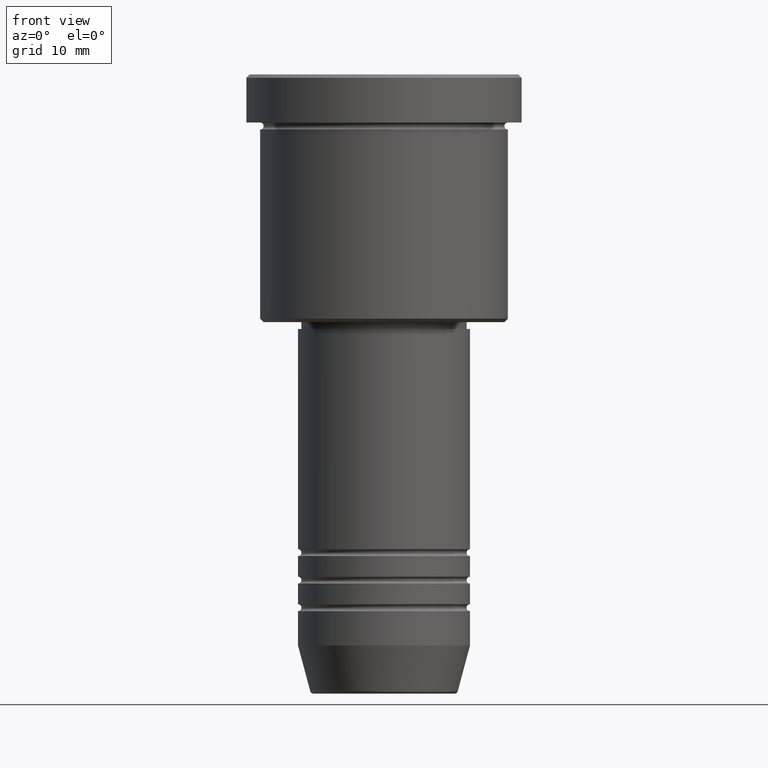
[diagram: clean part render]
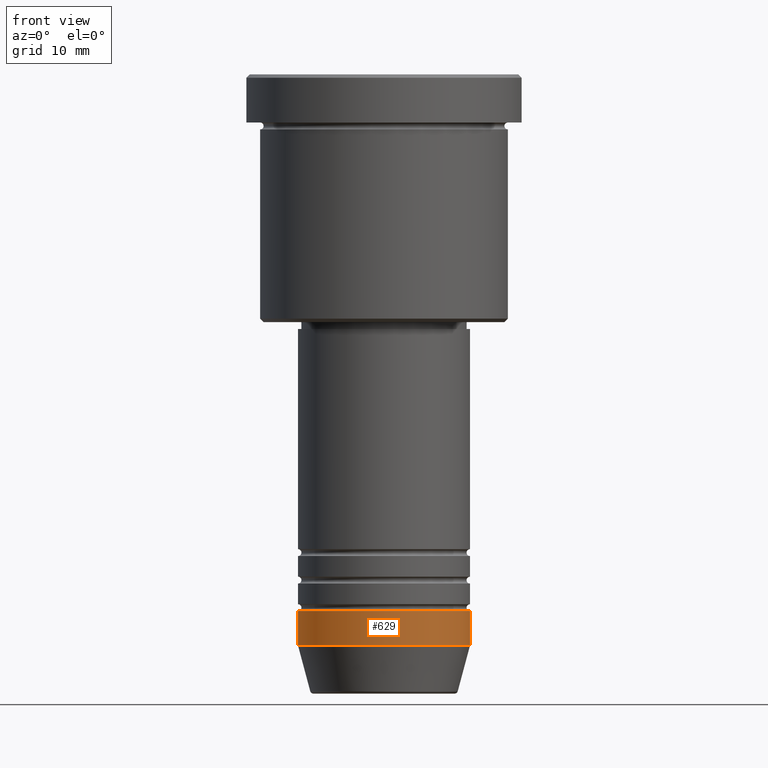
[diagram: same view with one face highlighted and labeled with its STEP entity id]
A machine part, front view. The second image highlights one B-rep face of the part: STEP entity #629.
In plain terms, the highlighted cylindrical surface (partial cylindrical patch) has radius 12.5 mm, axis along (-0, -0, 1).
Its self-contained STEP definition (entity closure, byte-faithful):
#48 = CARTESIAN_POINT ( 'NONE',  ( 0.000000000000000000, 0.000000000000000000, -82.99999999999998579 ) ) ;
#59 = ORIENTED_EDGE ( 'NONE', *, *, #408, .F. ) ;
#111 = CARTESIAN_POINT ( 'NONE',  ( 12.50000000000000000, 0.000000000000000000, -82.99999999999998579 ) ) ;
#140 = DIRECTION ( 'NONE',  ( -0.000000000000000000, -0.000000000000000000, 1.000000000000000000 ) ) ;
#147 = CARTESIAN_POINT ( 'NONE',  ( 0.000000000000000000, 0.000000000000000000, -77.99999999999998579 ) ) ;
#161 = LINE ( 'NONE', #691, #758 ) ;
#202 = AXIS2_PLACEMENT_3D ( 'NONE', #48, #1124, #854 ) ;
#213 = CYLINDRICAL_SURFACE ( 'NONE', #965, 12.50000000000000000 ) ;
#248 = DIRECTION ( 'NONE',  ( 1.000000000000000000, 0.000000000000000000, 0.000000000000000000 ) ) ;
#313 = FACE_OUTER_BOUND ( 'NONE', #330, .T. ) ;
#323 = DIRECTION ( 'NONE',  ( 1.000000000000000000, 0.000000000000000000, 0.000000000000000000 ) ) ;
#330 = EDGE_LOOP ( 'NONE', ( #1054, #1085, #882, #59 ) ) ;
#355 = LINE ( 'NONE', #518, #609 ) ;
#408 = EDGE_CURVE ( 'NONE', #781, #1063, #1094, .T. ) ;
#410 = DIRECTION ( 'NONE',  ( -0.000000000000000000, -0.000000000000000000, 1.000000000000000000 ) ) ;
#518 = CARTESIAN_POINT ( 'NONE',  ( -12.50000000000000000, 1.530808498934191521E-15, 0.000000000000000000 ) ) ;
#561 = CARTESIAN_POINT ( 'NONE',  ( 0.000000000000000000, 0.000000000000000000, 0.000000000000000000 ) ) ;
#571 = AXIS2_PLACEMENT_3D ( 'NONE', #147, #410, #248 ) ;
#581 = CARTESIAN_POINT ( 'NONE',  ( 12.50000000000000000, 0.000000000000000000, -77.99999999999998579 ) ) ;
#600 = VERTEX_POINT ( 'NONE', #757 ) ;
#609 = VECTOR ( 'NONE', #1166, 1000.000000000000000 ) ;
#614 = DIRECTION ( 'NONE',  ( -0.000000000000000000, -0.000000000000000000, 1.000000000000000000 ) ) ;
#629 = ADVANCED_FACE ( 'NONE', ( #313 ), #213, .T. ) ;
#691 = CARTESIAN_POINT ( 'NONE',  ( 12.50000000000000000, 0.000000000000000000, 0.000000000000000000 ) ) ;
#698 = CARTESIAN_POINT ( 'NONE',  ( -12.50000000000000000, 1.530808498934191521E-15, -77.99999999999998579 ) ) ;
#736 = EDGE_CURVE ( 'NONE', #973, #1063, #161, .T. ) ;
#748 = EDGE_CURVE ( 'NONE', #600, #781, #355, .T. ) ;
#757 = CARTESIAN_POINT ( 'NONE',  ( -12.50000000000000000, 1.530808498934191521E-15, -82.99999999999998579 ) ) ;
#758 = VECTOR ( 'NONE', #614, 1000.000000000000000 ) ;
#781 = VERTEX_POINT ( 'NONE', #698 ) ;
#854 = DIRECTION ( 'NONE',  ( 1.000000000000000000, 0.000000000000000000, 0.000000000000000000 ) ) ;
#882 = ORIENTED_EDGE ( 'NONE', *, *, #736, .T. ) ;
#965 = AXIS2_PLACEMENT_3D ( 'NONE', #561, #140, #323 ) ;
#973 = VERTEX_POINT ( 'NONE', #111 ) ;
#1054 = ORIENTED_EDGE ( 'NONE', *, *, #748, .F. ) ;
#1063 = VERTEX_POINT ( 'NONE', #581 ) ;
#1073 = CIRCLE ( 'NONE', #202, 12.50000000000000000 ) ;
#1085 = ORIENTED_EDGE ( 'NONE', *, *, #1100, .T. ) ;
#1094 = CIRCLE ( 'NONE', #571, 12.50000000000000000 ) ;
#1100 = EDGE_CURVE ( 'NONE', #600, #973, #1073, .T. ) ;
#1124 = DIRECTION ( 'NONE',  ( -0.000000000000000000, -0.000000000000000000, 1.000000000000000000 ) ) ;
#1166 = DIRECTION ( 'NONE',  ( -0.000000000000000000, -0.000000000000000000, 1.000000000000000000 ) ) ;